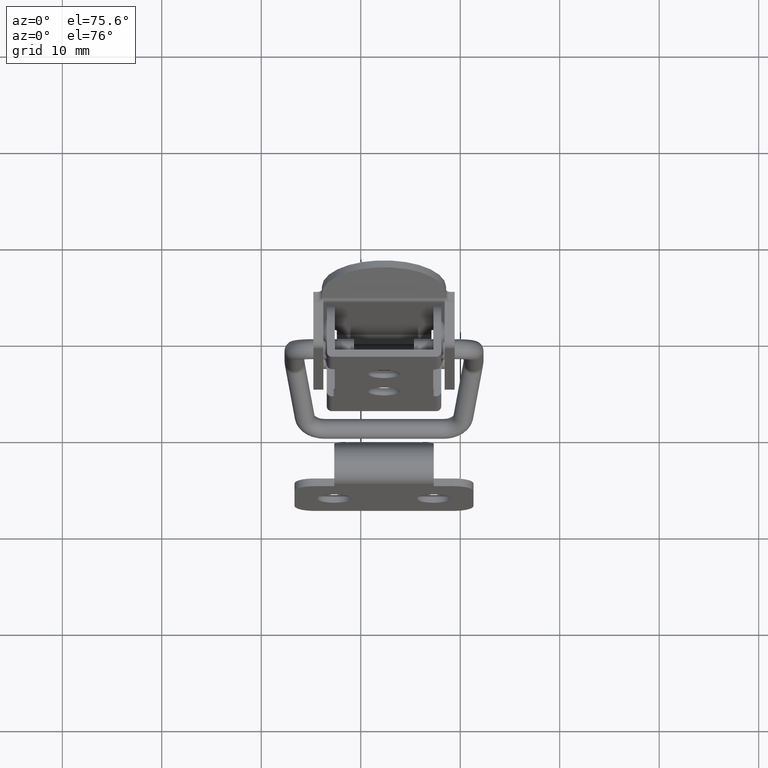
[diagram: clean part render]
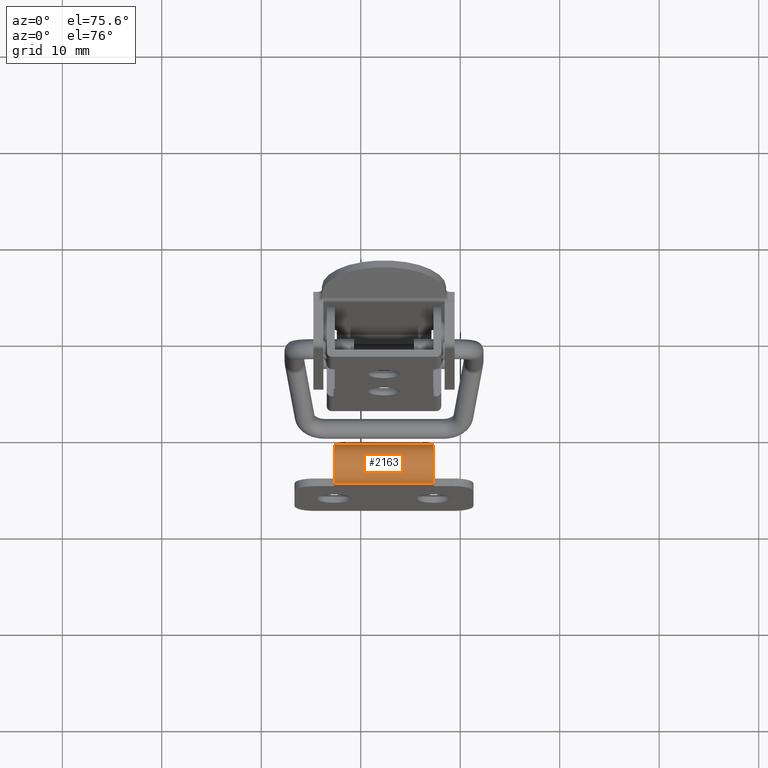
[diagram: same view with one face highlighted and labeled with its STEP entity id]
A machine part, auxiliary view. The second image highlights one B-rep face of the part: STEP entity #2163.
In plain terms, the highlighted cylindrical surface (edge-blend (fillet) strip) has radius 2 mm, axis along (-1, 0, 0).
Its self-contained STEP definition (entity closure, byte-faithful):
#264=LINE('',#3658,#430);
#277=LINE('',#3694,#443);
#430=VECTOR('',#2989,10.);
#443=VECTOR('',#3022,10.);
#633=FACE_OUTER_BOUND('',#805,.T.);
#805=EDGE_LOOP('',(#1969,#1970,#1971,#1972));
#907=CIRCLE('',#2382,2.);
#910=CIRCLE('',#2390,2.);
#1091=VERTEX_POINT('',#3638);
#1092=VERTEX_POINT('',#3640);
#1099=VERTEX_POINT('',#3656);
#1106=VERTEX_POINT('',#3674);
#1362=EDGE_CURVE('',#1092,#1091,#907,.T.);
#1371=EDGE_CURVE('',#1091,#1099,#264,.T.);
#1380=EDGE_CURVE('',#1099,#1106,#910,.T.);
#1389=EDGE_CURVE('',#1092,#1106,#277,.T.);
#1969=ORIENTED_EDGE('',*,*,#1362,.T.);
#1970=ORIENTED_EDGE('',*,*,#1371,.T.);
#1971=ORIENTED_EDGE('',*,*,#1380,.T.);
#1972=ORIENTED_EDGE('',*,*,#1389,.F.);
#2042=CYLINDRICAL_SURFACE('',#2412,2.);
#2163=ADVANCED_FACE('',(#633),#2042,.T.);
#2382=AXIS2_PLACEMENT_3D('',#3641,#2975,#2976);
#2390=AXIS2_PLACEMENT_3D('',#3676,#3004,#3005);
#2412=AXIS2_PLACEMENT_3D('',#3736,#3070,#3071);
#2975=DIRECTION('center_axis',(1.38777878078145E-16,3.85185988877447E-32,
1.));
#2976=DIRECTION('ref_axis',(0.,1.,0.));
#2989=DIRECTION('',(0.,0.,1.));
#3004=DIRECTION('center_axis',(0.,0.,-1.));
#3005=DIRECTION('ref_axis',(0.,1.,0.));
#3022=DIRECTION('',(0.,0.,1.));
#3070=DIRECTION('center_axis',(0.,0.,1.));
#3071=DIRECTION('ref_axis',(0.,1.,0.));
#3638=CARTESIAN_POINT('',(0.61984424562335,3.9015238918214,4.));
#3640=CARTESIAN_POINT('',(0.,0.,4.));
#3641=CARTESIAN_POINT('Origin',(0.,2.,4.));
#3656=CARTESIAN_POINT('',(0.61984424562335,3.9015238918214,14.));
#3658=CARTESIAN_POINT('',(0.61984424562335,3.9015238918214,0.));
#3674=CARTESIAN_POINT('',(0.,0.,14.));
#3676=CARTESIAN_POINT('Origin',(0.,2.,14.));
#3694=CARTESIAN_POINT('',(0.,0.,0.));
#3736=CARTESIAN_POINT('Origin',(0.,2.,0.));